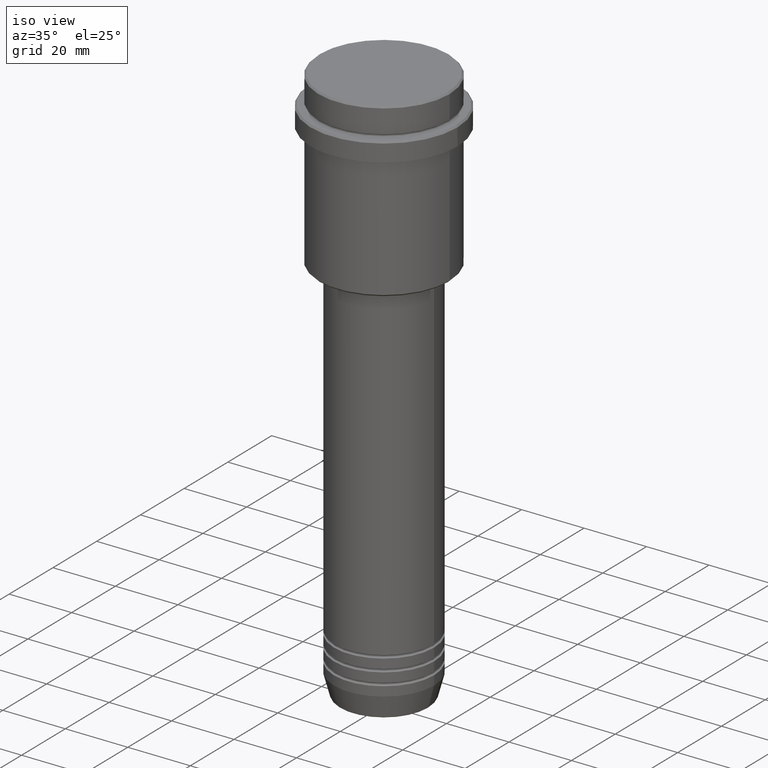
[diagram: clean part render]
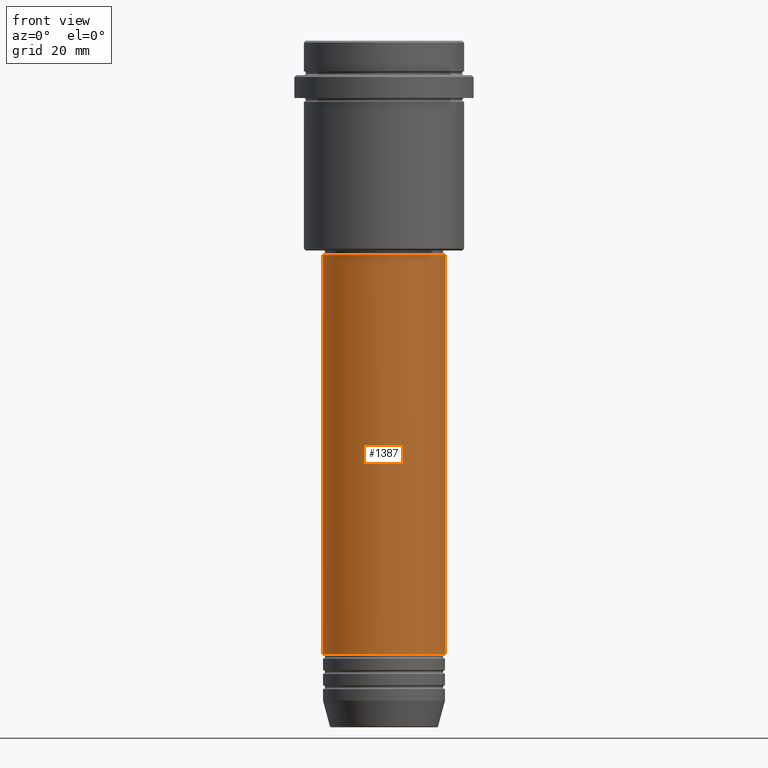
[diagram: tour spotlight — one face highlighted and labeled with its STEP entity id]
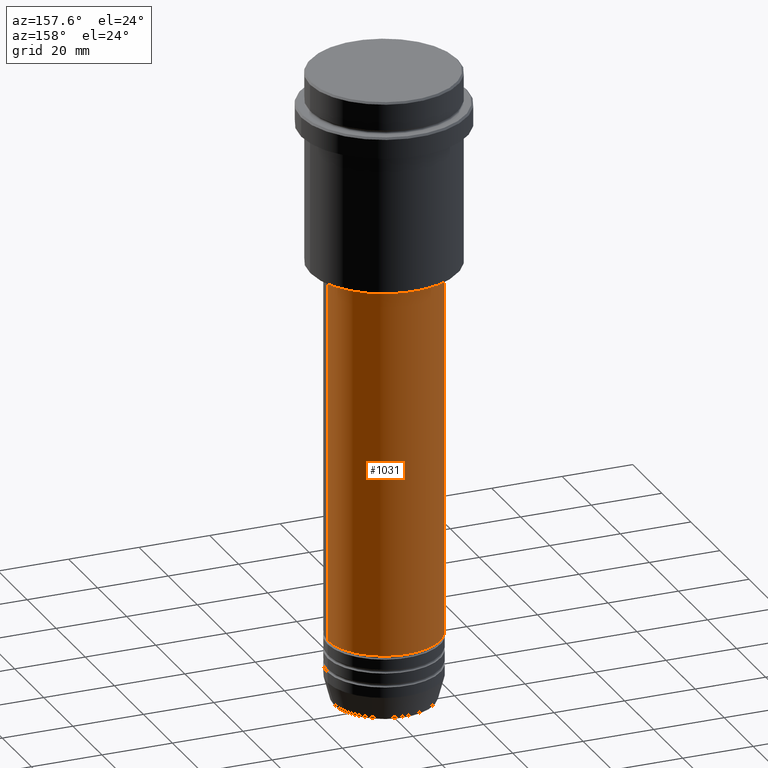
[diagram: tour spotlight — one face highlighted and labeled with its STEP entity id]
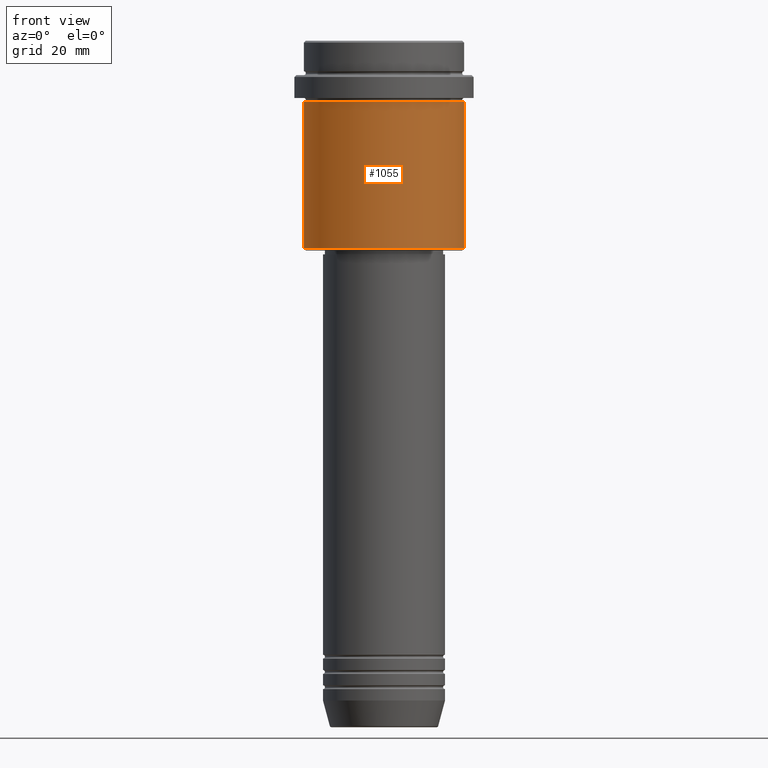
[diagram: tour spotlight — one face highlighted and labeled with its STEP entity id]
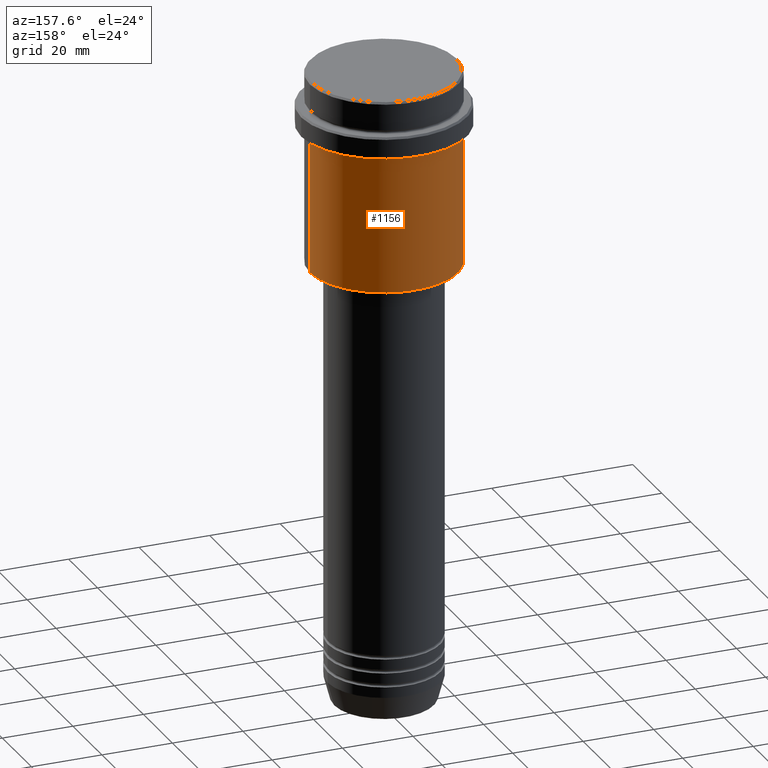
[diagram: tour spotlight — one face highlighted and labeled with its STEP entity id]
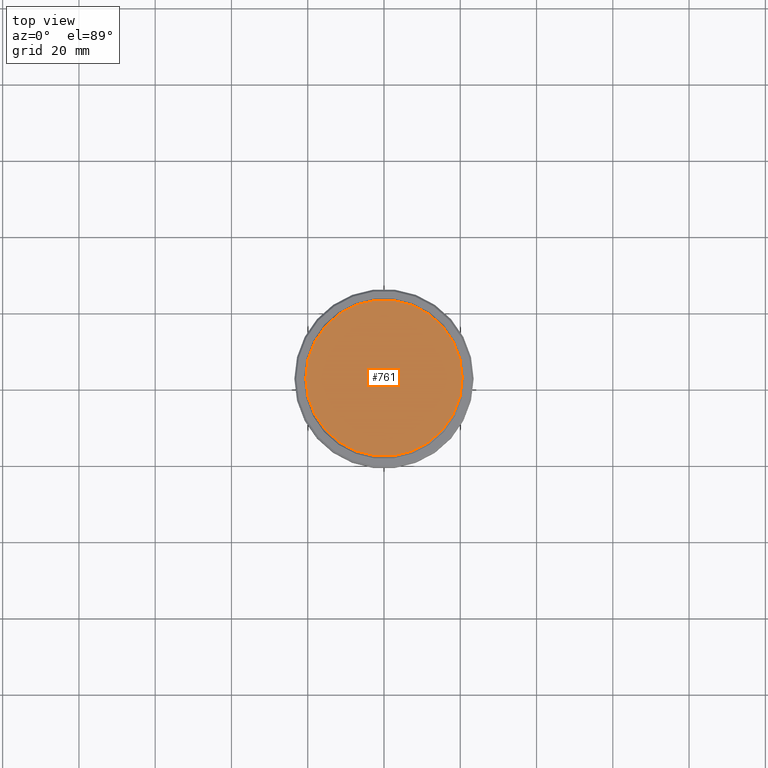
[diagram: tour spotlight — one face highlighted and labeled with its STEP entity id]
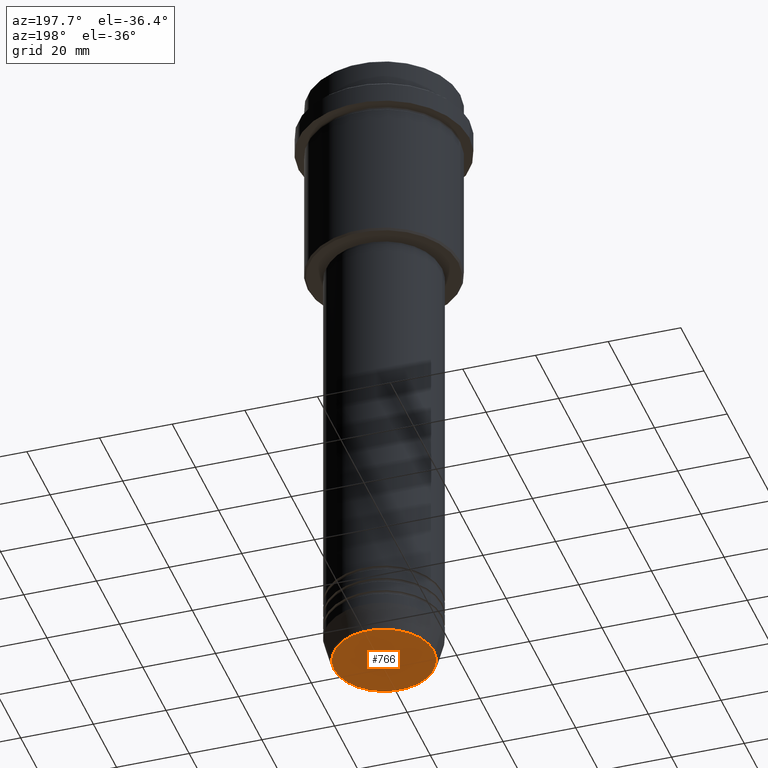
[diagram: tour spotlight — one face highlighted and labeled with its STEP entity id]
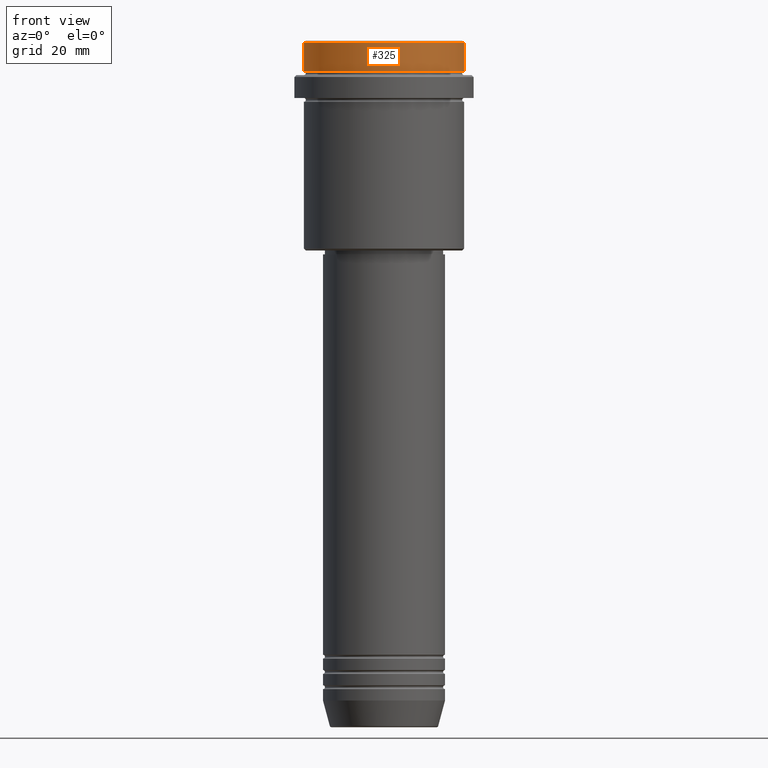
[diagram: tour spotlight — one face highlighted and labeled with its STEP entity id]
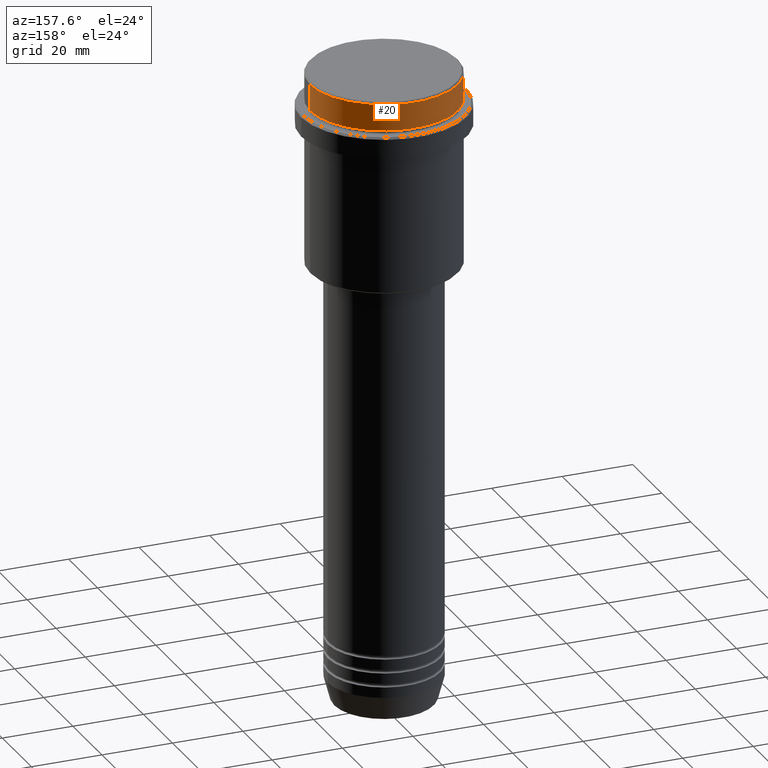
[diagram: tour spotlight — one face highlighted and labeled with its STEP entity id]
A machine part: a face-by-face anatomy tour. The part has 52 B-rep faces; the first image is the clean iso view, then the 8 largest visible faces are spotlighted one at a time (largest first), each with its STEP entity span.

Face 1 — front view, entity #1387. In plain terms, the highlighted cylindrical surface (partial cylindrical patch) has radius 16 mm, axis along (-0, -0, 1).
Definition (entity closure, byte-faithful):
#221 = DIRECTION ( 'NONE',  ( -0.000000000000000000, -0.000000000000000000, 1.000000000000000000 ) ) ;
#254 = LINE ( 'NONE', #1130, #696 ) ;
#318 = ORIENTED_EDGE ( 'NONE', *, *, #471, .F. ) ;
#347 = VERTEX_POINT ( 'NONE', #1361 ) ;
#352 = CARTESIAN_POINT ( 'NONE',  ( -16.00000000000000000, 1.959434878635765131E-15, -160.9999999999998579 ) ) ;
#359 = CARTESIAN_POINT ( 'NONE',  ( 0.000000000000000000, 0.000000000000000000, -160.9999999999998579 ) ) ;
#459 = CARTESIAN_POINT ( 'NONE',  ( 0.000000000000000000, 0.000000000000000000, -55.99999999999999289 ) ) ;
#471 = EDGE_CURVE ( 'NONE', #594, #1333, #1203, .T. ) ;
#498 = CIRCLE ( 'NONE', #649, 16.00000000000000355 ) ;
#518 = EDGE_CURVE ( 'NONE', #347, #878, #254, .T. ) ;
#580 = CARTESIAN_POINT ( 'NONE',  ( -16.00000000000000355, 1.959434878635765526E-15, -55.99999999999999289 ) ) ;
#583 = ORIENTED_EDGE ( 'NONE', *, *, #1022, .T. ) ;
#594 = VERTEX_POINT ( 'NONE', #352 ) ;
#649 = AXIS2_PLACEMENT_3D ( 'NONE', #459, #898, #688 ) ;
#688 = DIRECTION ( 'NONE',  ( 1.000000000000000000, 0.000000000000000000, 0.000000000000000000 ) ) ;
#689 = EDGE_LOOP ( 'NONE', ( #318, #583, #763, #1170 ) ) ;
#696 = VECTOR ( 'NONE', #935, 1000.000000000000000 ) ;
#710 = CARTESIAN_POINT ( 'NONE',  ( 16.00000000000000355, 0.000000000000000000, -55.99999999999999289 ) ) ;
#722 = AXIS2_PLACEMENT_3D ( 'NONE', #1398, #960, #1385 ) ;
#751 = VECTOR ( 'NONE', #221, 1000.000000000000000 ) ;
#763 = ORIENTED_EDGE ( 'NONE', *, *, #518, .T. ) ;
#818 = DIRECTION ( 'NONE',  ( -0.000000000000000000, -0.000000000000000000, 1.000000000000000000 ) ) ;
#871 = FACE_OUTER_BOUND ( 'NONE', #689, .T. ) ;
#878 = VERTEX_POINT ( 'NONE', #710 ) ;
#898 = DIRECTION ( 'NONE',  ( -0.000000000000000000, -0.000000000000000000, 1.000000000000000000 ) ) ;
#935 = DIRECTION ( 'NONE',  ( -0.000000000000000000, -0.000000000000000000, 1.000000000000000000 ) ) ;
#951 = CYLINDRICAL_SURFACE ( 'NONE', #722, 16.00000000000000000 ) ;
#960 = DIRECTION ( 'NONE',  ( -0.000000000000000000, -0.000000000000000000, 1.000000000000000000 ) ) ;
#994 = AXIS2_PLACEMENT_3D ( 'NONE', #359, #818, #1236 ) ;
#1022 = EDGE_CURVE ( 'NONE', #594, #347, #1254, .T. ) ;
#1099 = CARTESIAN_POINT ( 'NONE',  ( -16.00000000000000000, 1.959434878635765131E-15, 0.000000000000000000 ) ) ;
#1130 = CARTESIAN_POINT ( 'NONE',  ( 16.00000000000000000, 0.000000000000000000, 0.000000000000000000 ) ) ;
#1170 = ORIENTED_EDGE ( 'NONE', *, *, #1218, .F. ) ;
#1203 = LINE ( 'NONE', #1099, #751 ) ;
#1218 = EDGE_CURVE ( 'NONE', #1333, #878, #498, .T. ) ;
#1236 = DIRECTION ( 'NONE',  ( 1.000000000000000000, 0.000000000000000000, 0.000000000000000000 ) ) ;
#1254 = CIRCLE ( 'NONE', #994, 16.00000000000000000 ) ;
#1333 = VERTEX_POINT ( 'NONE', #580 ) ;
#1361 = CARTESIAN_POINT ( 'NONE',  ( 16.00000000000000000, 0.000000000000000000, -160.9999999999998579 ) ) ;
#1385 = DIRECTION ( 'NONE',  ( 1.000000000000000000, 0.000000000000000000, 0.000000000000000000 ) ) ;
#1387 = ADVANCED_FACE ( 'NONE', ( #871 ), #951, .T. ) ;
#1398 = CARTESIAN_POINT ( 'NONE',  ( 0.000000000000000000, 0.000000000000000000, 0.000000000000000000 ) ) ;

Face 2 — auxiliary view, entity #1031. In plain terms, the highlighted cylindrical surface (partial cylindrical patch) has radius 16 mm, axis along (-0, -0, 1).
Definition (entity closure, byte-faithful):
#47 = ORIENTED_EDGE ( 'NONE', *, *, #471, .T. ) ;
#55 = DIRECTION ( 'NONE',  ( 1.000000000000000000, 0.000000000000000000, 0.000000000000000000 ) ) ;
#149 = DIRECTION ( 'NONE',  ( -0.000000000000000000, -0.000000000000000000, 1.000000000000000000 ) ) ;
#155 = EDGE_CURVE ( 'NONE', #347, #594, #343, .T. ) ;
#221 = DIRECTION ( 'NONE',  ( -0.000000000000000000, -0.000000000000000000, 1.000000000000000000 ) ) ;
#254 = LINE ( 'NONE', #1130, #696 ) ;
#277 = DIRECTION ( 'NONE',  ( 1.000000000000000000, 0.000000000000000000, 0.000000000000000000 ) ) ;
#343 = CIRCLE ( 'NONE', #494, 16.00000000000000000 ) ;
#347 = VERTEX_POINT ( 'NONE', #1361 ) ;
#352 = CARTESIAN_POINT ( 'NONE',  ( -16.00000000000000000, 1.959434878635765131E-15, -160.9999999999998579 ) ) ;
#384 = AXIS2_PLACEMENT_3D ( 'NONE', #675, #493, #277 ) ;
#471 = EDGE_CURVE ( 'NONE', #594, #1333, #1203, .T. ) ;
#485 = DIRECTION ( 'NONE',  ( -0.000000000000000000, -0.000000000000000000, 1.000000000000000000 ) ) ;
#493 = DIRECTION ( 'NONE',  ( -0.000000000000000000, -0.000000000000000000, 1.000000000000000000 ) ) ;
#494 = AXIS2_PLACEMENT_3D ( 'NONE', #701, #485, #598 ) ;
#503 = EDGE_CURVE ( 'NONE', #878, #1333, #538, .T. ) ;
#518 = EDGE_CURVE ( 'NONE', #347, #878, #254, .T. ) ;
#535 = ORIENTED_EDGE ( 'NONE', *, *, #155, .T. ) ;
#538 = CIRCLE ( 'NONE', #950, 16.00000000000000355 ) ;
#580 = CARTESIAN_POINT ( 'NONE',  ( -16.00000000000000355, 1.959434878635765526E-15, -55.99999999999999289 ) ) ;
#594 = VERTEX_POINT ( 'NONE', #352 ) ;
#598 = DIRECTION ( 'NONE',  ( 1.000000000000000000, 0.000000000000000000, 0.000000000000000000 ) ) ;
#675 = CARTESIAN_POINT ( 'NONE',  ( 0.000000000000000000, 0.000000000000000000, 0.000000000000000000 ) ) ;
#682 = CYLINDRICAL_SURFACE ( 'NONE', #384, 16.00000000000000000 ) ;
#696 = VECTOR ( 'NONE', #935, 1000.000000000000000 ) ;
#701 = CARTESIAN_POINT ( 'NONE',  ( 0.000000000000000000, 0.000000000000000000, -160.9999999999998579 ) ) ;
#710 = CARTESIAN_POINT ( 'NONE',  ( 16.00000000000000355, 0.000000000000000000, -55.99999999999999289 ) ) ;
#751 = VECTOR ( 'NONE', #221, 1000.000000000000000 ) ;
#803 = CARTESIAN_POINT ( 'NONE',  ( 0.000000000000000000, 0.000000000000000000, -55.99999999999999289 ) ) ;
#878 = VERTEX_POINT ( 'NONE', #710 ) ;
#935 = DIRECTION ( 'NONE',  ( -0.000000000000000000, -0.000000000000000000, 1.000000000000000000 ) ) ;
#941 = ORIENTED_EDGE ( 'NONE', *, *, #503, .F. ) ;
#950 = AXIS2_PLACEMENT_3D ( 'NONE', #803, #149, #55 ) ;
#1031 = ADVANCED_FACE ( 'NONE', ( #1117 ), #682, .T. ) ;
#1099 = CARTESIAN_POINT ( 'NONE',  ( -16.00000000000000000, 1.959434878635765131E-15, 0.000000000000000000 ) ) ;
#1117 = FACE_OUTER_BOUND ( 'NONE', #1132, .T. ) ;
#1130 = CARTESIAN_POINT ( 'NONE',  ( 16.00000000000000000, 0.000000000000000000, 0.000000000000000000 ) ) ;
#1132 = EDGE_LOOP ( 'NONE', ( #535, #47, #941, #1311 ) ) ;
#1203 = LINE ( 'NONE', #1099, #751 ) ;
#1311 = ORIENTED_EDGE ( 'NONE', *, *, #518, .F. ) ;
#1333 = VERTEX_POINT ( 'NONE', #580 ) ;
#1361 = CARTESIAN_POINT ( 'NONE',  ( 16.00000000000000000, 0.000000000000000000, -160.9999999999998579 ) ) ;

Face 3 — front view, entity #1055. In plain terms, the highlighted cylindrical surface (partial cylindrical patch) has radius 21 mm, axis along (-0, -0, 1).
Definition (entity closure, byte-faithful):
#32 = CARTESIAN_POINT ( 'NONE',  ( 21.00000000000000000, 0.000000000000000000, -54.49999999999999289 ) ) ;
#100 = EDGE_CURVE ( 'NONE', #740, #1116, #172, .T. ) ;
#132 = DIRECTION ( 'NONE',  ( -0.000000000000000000, -0.000000000000000000, 1.000000000000000000 ) ) ;
#171 = AXIS2_PLACEMENT_3D ( 'NONE', #444, #1304, #764 ) ;
#172 = CIRCLE ( 'NONE', #788, 21.00000000000000000 ) ;
#176 = ORIENTED_EDGE ( 'NONE', *, *, #792, .T. ) ;
#206 = ORIENTED_EDGE ( 'NONE', *, *, #100, .F. ) ;
#240 = CIRCLE ( 'NONE', #171, 21.00000000000000000 ) ;
#285 = CARTESIAN_POINT ( 'NONE',  ( -21.00000000000000000, 2.571758278209441661E-15, -16.00000000000000355 ) ) ;
#303 = DIRECTION ( 'NONE',  ( -0.000000000000000000, -0.000000000000000000, 1.000000000000000000 ) ) ;
#307 = EDGE_LOOP ( 'NONE', ( #1175, #1269, #176, #206 ) ) ;
#313 = FACE_OUTER_BOUND ( 'NONE', #307, .T. ) ;
#394 = DIRECTION ( 'NONE',  ( -0.000000000000000000, -0.000000000000000000, 1.000000000000000000 ) ) ;
#444 = CARTESIAN_POINT ( 'NONE',  ( 0.000000000000000000, 0.000000000000000000, -54.49999999999999289 ) ) ;
#466 = DIRECTION ( 'NONE',  ( 1.000000000000000000, 0.000000000000000000, 0.000000000000000000 ) ) ;
#492 = LINE ( 'NONE', #1340, #1097 ) ;
#507 = CARTESIAN_POINT ( 'NONE',  ( 0.000000000000000000, 0.000000000000000000, 0.000000000000000000 ) ) ;
#520 = DIRECTION ( 'NONE',  ( 1.000000000000000000, 0.000000000000000000, 0.000000000000000000 ) ) ;
#740 = VERTEX_POINT ( 'NONE', #285 ) ;
#754 = EDGE_CURVE ( 'NONE', #914, #740, #1112, .T. ) ;
#764 = DIRECTION ( 'NONE',  ( -1.000000000000000000, 0.000000000000000000, 0.000000000000000000 ) ) ;
#774 = DIRECTION ( 'NONE',  ( -0.000000000000000000, -0.000000000000000000, 1.000000000000000000 ) ) ;
#788 = AXIS2_PLACEMENT_3D ( 'NONE', #1006, #132, #466 ) ;
#792 = EDGE_CURVE ( 'NONE', #1025, #1116, #492, .T. ) ;
#817 = VECTOR ( 'NONE', #774, 1000.000000000000000 ) ;
#914 = VERTEX_POINT ( 'NONE', #1266 ) ;
#1006 = CARTESIAN_POINT ( 'NONE',  ( 0.000000000000000000, 0.000000000000000000, -16.00000000000000355 ) ) ;
#1025 = VERTEX_POINT ( 'NONE', #32 ) ;
#1055 = ADVANCED_FACE ( 'NONE', ( #313 ), #1265, .T. ) ;
#1096 = EDGE_CURVE ( 'NONE', #914, #1025, #240, .T. ) ;
#1097 = VECTOR ( 'NONE', #394, 1000.000000000000000 ) ;
#1112 = LINE ( 'NONE', #1341, #817 ) ;
#1116 = VERTEX_POINT ( 'NONE', #1197 ) ;
#1166 = AXIS2_PLACEMENT_3D ( 'NONE', #507, #303, #520 ) ;
#1175 = ORIENTED_EDGE ( 'NONE', *, *, #754, .F. ) ;
#1197 = CARTESIAN_POINT ( 'NONE',  ( 21.00000000000000000, 0.000000000000000000, -16.00000000000000355 ) ) ;
#1265 = CYLINDRICAL_SURFACE ( 'NONE', #1166, 21.00000000000000000 ) ;
#1266 = CARTESIAN_POINT ( 'NONE',  ( -21.00000000000000000, 2.571758278209441661E-15, -54.49999999999999289 ) ) ;
#1269 = ORIENTED_EDGE ( 'NONE', *, *, #1096, .T. ) ;
#1304 = DIRECTION ( 'NONE',  ( -0.000000000000000000, -0.000000000000000000, 1.000000000000000000 ) ) ;
#1340 = CARTESIAN_POINT ( 'NONE',  ( 21.00000000000000000, 0.000000000000000000, 0.000000000000000000 ) ) ;
#1341 = CARTESIAN_POINT ( 'NONE',  ( -21.00000000000000000, 2.571758278209441661E-15, 0.000000000000000000 ) ) ;

Face 4 — auxiliary view, entity #1156. In plain terms, the highlighted cylindrical surface (partial cylindrical patch) has radius 21 mm, axis along (-0, -0, 1).
Definition (entity closure, byte-faithful):
#32 = CARTESIAN_POINT ( 'NONE',  ( 21.00000000000000000, 0.000000000000000000, -54.49999999999999289 ) ) ;
#34 = ORIENTED_EDGE ( 'NONE', *, *, #792, .F. ) ;
#37 = ORIENTED_EDGE ( 'NONE', *, *, #429, .T. ) ;
#101 = EDGE_LOOP ( 'NONE', ( #37, #263, #1075, #34 ) ) ;
#251 = DIRECTION ( 'NONE',  ( 1.000000000000000000, 0.000000000000000000, 0.000000000000000000 ) ) ;
#263 = ORIENTED_EDGE ( 'NONE', *, *, #754, .T. ) ;
#285 = CARTESIAN_POINT ( 'NONE',  ( -21.00000000000000000, 2.571758278209441661E-15, -16.00000000000000355 ) ) ;
#299 = AXIS2_PLACEMENT_3D ( 'NONE', #419, #799, #251 ) ;
#323 = DIRECTION ( 'NONE',  ( 1.000000000000000000, 0.000000000000000000, 0.000000000000000000 ) ) ;
#365 = CARTESIAN_POINT ( 'NONE',  ( 0.000000000000000000, 0.000000000000000000, -54.49999999999999289 ) ) ;
#394 = DIRECTION ( 'NONE',  ( -0.000000000000000000, -0.000000000000000000, 1.000000000000000000 ) ) ;
#419 = CARTESIAN_POINT ( 'NONE',  ( 0.000000000000000000, 0.000000000000000000, 0.000000000000000000 ) ) ;
#429 = EDGE_CURVE ( 'NONE', #1025, #914, #1207, .T. ) ;
#438 = DIRECTION ( 'NONE',  ( -0.000000000000000000, -0.000000000000000000, 1.000000000000000000 ) ) ;
#492 = LINE ( 'NONE', #1340, #1097 ) ;
#545 = DIRECTION ( 'NONE',  ( -1.000000000000000000, 0.000000000000000000, 0.000000000000000000 ) ) ;
#564 = CIRCLE ( 'NONE', #739, 21.00000000000000000 ) ;
#739 = AXIS2_PLACEMENT_3D ( 'NONE', #856, #438, #323 ) ;
#740 = VERTEX_POINT ( 'NONE', #285 ) ;
#754 = EDGE_CURVE ( 'NONE', #914, #740, #1112, .T. ) ;
#774 = DIRECTION ( 'NONE',  ( -0.000000000000000000, -0.000000000000000000, 1.000000000000000000 ) ) ;
#792 = EDGE_CURVE ( 'NONE', #1025, #1116, #492, .T. ) ;
#799 = DIRECTION ( 'NONE',  ( -0.000000000000000000, -0.000000000000000000, 1.000000000000000000 ) ) ;
#817 = VECTOR ( 'NONE', #774, 1000.000000000000000 ) ;
#856 = CARTESIAN_POINT ( 'NONE',  ( 0.000000000000000000, 0.000000000000000000, -16.00000000000000355 ) ) ;
#914 = VERTEX_POINT ( 'NONE', #1266 ) ;
#1005 = DIRECTION ( 'NONE',  ( -0.000000000000000000, -0.000000000000000000, 1.000000000000000000 ) ) ;
#1025 = VERTEX_POINT ( 'NONE', #32 ) ;
#1075 = ORIENTED_EDGE ( 'NONE', *, *, #1409, .F. ) ;
#1097 = VECTOR ( 'NONE', #394, 1000.000000000000000 ) ;
#1112 = LINE ( 'NONE', #1341, #817 ) ;
#1116 = VERTEX_POINT ( 'NONE', #1197 ) ;
#1156 = ADVANCED_FACE ( 'NONE', ( #1389 ), #1386, .T. ) ;
#1197 = CARTESIAN_POINT ( 'NONE',  ( 21.00000000000000000, 0.000000000000000000, -16.00000000000000355 ) ) ;
#1207 = CIRCLE ( 'NONE', #1306, 21.00000000000000000 ) ;
#1266 = CARTESIAN_POINT ( 'NONE',  ( -21.00000000000000000, 2.571758278209441661E-15, -54.49999999999999289 ) ) ;
#1306 = AXIS2_PLACEMENT_3D ( 'NONE', #365, #1005, #545 ) ;
#1340 = CARTESIAN_POINT ( 'NONE',  ( 21.00000000000000000, 0.000000000000000000, 0.000000000000000000 ) ) ;
#1341 = CARTESIAN_POINT ( 'NONE',  ( -21.00000000000000000, 2.571758278209441661E-15, 0.000000000000000000 ) ) ;
#1386 = CYLINDRICAL_SURFACE ( 'NONE', #299, 21.00000000000000000 ) ;
#1389 = FACE_OUTER_BOUND ( 'NONE', #101, .T. ) ;
#1409 = EDGE_CURVE ( 'NONE', #1116, #740, #564, .T. ) ;

Face 5 — top view, entity #761. In plain terms, the highlighted planar face has unit normal (0, -0, 1).
Definition (entity closure, byte-faithful):
#46 = CARTESIAN_POINT ( 'NONE',  ( 0.000000000000000000, 0.000000000000000000, 0.000000000000000000 ) ) ;
#128 = ORIENTED_EDGE ( 'NONE', *, *, #1040, .T. ) ;
#211 = DIRECTION ( 'NONE',  ( 1.000000000000000000, 0.000000000000000000, 0.000000000000000000 ) ) ;
#258 = VERTEX_POINT ( 'NONE', #1152 ) ;
#289 = DIRECTION ( 'NONE',  ( 0.000000000000000000, -0.000000000000000000, 1.000000000000000000 ) ) ;
#411 = DIRECTION ( 'NONE',  ( 1.000000000000000000, 0.000000000000000000, 0.000000000000000000 ) ) ;
#477 = VERTEX_POINT ( 'NONE', #548 ) ;
#548 = CARTESIAN_POINT ( 'NONE',  ( 20.49999999999998934, 2.541142108230757480E-15, 0.000000000000000000 ) ) ;
#550 = EDGE_LOOP ( 'NONE', ( #128, #681 ) ) ;
#589 = DIRECTION ( 'NONE',  ( -0.000000000000000000, -0.000000000000000000, 1.000000000000000000 ) ) ;
#681 = ORIENTED_EDGE ( 'NONE', *, *, #721, .T. ) ;
#721 = EDGE_CURVE ( 'NONE', #477, #258, #859, .T. ) ;
#748 = CARTESIAN_POINT ( 'NONE',  ( 0.000000000000000000, 0.000000000000000000, 0.000000000000000000 ) ) ;
#761 = ADVANCED_FACE ( 'NONE', ( #866 ), #858, .T. ) ;
#791 = CARTESIAN_POINT ( 'NONE',  ( 0.000000000000000000, 0.000000000000000000, 0.000000000000000000 ) ) ;
#858 = PLANE ( 'NONE',  #929 ) ;
#859 = CIRCLE ( 'NONE', #1253, 20.49999999999998934 ) ;
#866 = FACE_OUTER_BOUND ( 'NONE', #550, .T. ) ;
#881 = CIRCLE ( 'NONE', #907, 20.49999999999998934 ) ;
#907 = AXIS2_PLACEMENT_3D ( 'NONE', #791, #589, #1154 ) ;
#929 = AXIS2_PLACEMENT_3D ( 'NONE', #46, #289, #411 ) ;
#1040 = EDGE_CURVE ( 'NONE', #258, #477, #881, .T. ) ;
#1152 = CARTESIAN_POINT ( 'NONE',  ( -20.49999999999998934, 0.000000000000000000, 0.000000000000000000 ) ) ;
#1154 = DIRECTION ( 'NONE',  ( 1.000000000000000000, 0.000000000000000000, 0.000000000000000000 ) ) ;
#1182 = DIRECTION ( 'NONE',  ( -0.000000000000000000, -0.000000000000000000, 1.000000000000000000 ) ) ;
#1253 = AXIS2_PLACEMENT_3D ( 'NONE', #748, #1182, #211 ) ;

Face 6 — auxiliary view, entity #766. In plain terms, the highlighted planar face has unit normal (0, -0, 1).
Definition (entity closure, byte-faithful):
#104 = EDGE_CURVE ( 'NONE', #928, #1299, #1400, .T. ) ;
#122 = AXIS2_PLACEMENT_3D ( 'NONE', #796, #684, #1219 ) ;
#175 = DIRECTION ( 'NONE',  ( 0.000000000000000000, -0.000000000000000000, 1.000000000000000000 ) ) ;
#195 = AXIS2_PLACEMENT_3D ( 'NONE', #1041, #175, #713 ) ;
#403 = CARTESIAN_POINT ( 'NONE',  ( 0.000000000000000000, 0.000000000000000000, -180.0000000000000000 ) ) ;
#464 = CARTESIAN_POINT ( 'NONE',  ( 13.74069215899265828, 0.000000000000000000, -180.0000000000000000 ) ) ;
#578 = ORIENTED_EDGE ( 'NONE', *, *, #640, .T. ) ;
#588 = AXIS2_PLACEMENT_3D ( 'NONE', #403, #846, #922 ) ;
#640 = EDGE_CURVE ( 'NONE', #1299, #928, #1395, .T. ) ;
#673 = EDGE_LOOP ( 'NONE', ( #578, #1384 ) ) ;
#684 = DIRECTION ( 'NONE',  ( 0.000000000000000000, 0.000000000000000000, -1.000000000000000000 ) ) ;
#713 = DIRECTION ( 'NONE',  ( 1.000000000000000000, 0.000000000000000000, 0.000000000000000000 ) ) ;
#766 = ADVANCED_FACE ( 'NONE', ( #1129 ), #1234, .F. ) ;
#773 = CARTESIAN_POINT ( 'NONE',  ( -13.74069215899265828, 1.712322416342415986E-15, -180.0000000000000000 ) ) ;
#796 = CARTESIAN_POINT ( 'NONE',  ( 0.000000000000000000, 0.000000000000000000, -180.0000000000000000 ) ) ;
#846 = DIRECTION ( 'NONE',  ( 0.000000000000000000, 0.000000000000000000, -1.000000000000000000 ) ) ;
#922 = DIRECTION ( 'NONE',  ( 1.000000000000000000, 0.000000000000000000, 0.000000000000000000 ) ) ;
#928 = VERTEX_POINT ( 'NONE', #773 ) ;
#1041 = CARTESIAN_POINT ( 'NONE',  ( 0.000000000000000000, 0.000000000000000000, -180.0000000000000000 ) ) ;
#1129 = FACE_OUTER_BOUND ( 'NONE', #673, .T. ) ;
#1219 = DIRECTION ( 'NONE',  ( 1.000000000000000000, 0.000000000000000000, 0.000000000000000000 ) ) ;
#1234 = PLANE ( 'NONE',  #195 ) ;
#1299 = VERTEX_POINT ( 'NONE', #464 ) ;
#1384 = ORIENTED_EDGE ( 'NONE', *, *, #104, .T. ) ;
#1395 = CIRCLE ( 'NONE', #588, 13.74069215899265828 ) ;
#1400 = CIRCLE ( 'NONE', #122, 13.74069215899265828 ) ;

Face 7 — front view, entity #325. In plain terms, the highlighted cylindrical surface (partial cylindrical patch) has radius 21 mm, axis along (-0, -0, 1).
Definition (entity closure, byte-faithful):
#51 = CARTESIAN_POINT ( 'NONE',  ( 0.000000000000000000, 0.000000000000000000, 0.000000000000000000 ) ) ;
#63 = CARTESIAN_POINT ( 'NONE',  ( 0.000000000000000000, 0.000000000000000000, -7.999999999999998224 ) ) ;
#69 = FACE_OUTER_BOUND ( 'NONE', #527, .T. ) ;
#127 = LINE ( 'NONE', #570, #1348 ) ;
#186 = CARTESIAN_POINT ( 'NONE',  ( 0.000000000000000000, 0.000000000000000000, -0.5000000000000108802 ) ) ;
#193 = AXIS2_PLACEMENT_3D ( 'NONE', #186, #823, #850 ) ;
#194 = CYLINDRICAL_SURFACE ( 'NONE', #1416, 21.00000000000000000 ) ;
#293 = EDGE_CURVE ( 'NONE', #940, #572, #949, .T. ) ;
#325 = ADVANCED_FACE ( 'NONE', ( #69 ), #194, .T. ) ;
#372 = VERTEX_POINT ( 'NONE', #982 ) ;
#395 = DIRECTION ( 'NONE',  ( -0.000000000000000000, -0.000000000000000000, 1.000000000000000000 ) ) ;
#458 = CARTESIAN_POINT ( 'NONE',  ( -21.00000000000000000, 2.571758278209441661E-15, -0.5000000000000108802 ) ) ;
#504 = LINE ( 'NONE', #1174, #1372 ) ;
#527 = EDGE_LOOP ( 'NONE', ( #1011, #546, #983, #1150 ) ) ;
#542 = VERTEX_POINT ( 'NONE', #1044 ) ;
#546 = ORIENTED_EDGE ( 'NONE', *, *, #809, .T. ) ;
#570 = CARTESIAN_POINT ( 'NONE',  ( 21.00000000000000000, 0.000000000000000000, 0.000000000000000000 ) ) ;
#572 = VERTEX_POINT ( 'NONE', #458 ) ;
#603 = EDGE_CURVE ( 'NONE', #542, #940, #127, .T. ) ;
#608 = AXIS2_PLACEMENT_3D ( 'NONE', #63, #1262, #1157 ) ;
#802 = EDGE_CURVE ( 'NONE', #372, #572, #504, .T. ) ;
#809 = EDGE_CURVE ( 'NONE', #372, #542, #1035, .T. ) ;
#823 = DIRECTION ( 'NONE',  ( 0.000000000000000000, 0.000000000000000000, -1.000000000000000000 ) ) ;
#830 = DIRECTION ( 'NONE',  ( 1.000000000000000000, 0.000000000000000000, 0.000000000000000000 ) ) ;
#850 = DIRECTION ( 'NONE',  ( 1.000000000000000000, 0.000000000000000000, 0.000000000000000000 ) ) ;
#940 = VERTEX_POINT ( 'NONE', #1288 ) ;
#949 = CIRCLE ( 'NONE', #193, 21.00000000000000000 ) ;
#982 = CARTESIAN_POINT ( 'NONE',  ( -21.00000000000000000, 2.571758278209441661E-15, -7.999999999999998224 ) ) ;
#983 = ORIENTED_EDGE ( 'NONE', *, *, #603, .T. ) ;
#1003 = DIRECTION ( 'NONE',  ( -0.000000000000000000, -0.000000000000000000, 1.000000000000000000 ) ) ;
#1011 = ORIENTED_EDGE ( 'NONE', *, *, #802, .F. ) ;
#1035 = CIRCLE ( 'NONE', #608, 21.00000000000000000 ) ;
#1044 = CARTESIAN_POINT ( 'NONE',  ( 21.00000000000000000, 0.000000000000000000, -7.999999999999998224 ) ) ;
#1150 = ORIENTED_EDGE ( 'NONE', *, *, #293, .T. ) ;
#1157 = DIRECTION ( 'NONE',  ( 1.000000000000000000, 0.000000000000000000, 0.000000000000000000 ) ) ;
#1174 = CARTESIAN_POINT ( 'NONE',  ( -21.00000000000000000, 2.571758278209441661E-15, 0.000000000000000000 ) ) ;
#1262 = DIRECTION ( 'NONE',  ( -0.000000000000000000, -0.000000000000000000, 1.000000000000000000 ) ) ;
#1288 = CARTESIAN_POINT ( 'NONE',  ( 21.00000000000000000, 0.000000000000000000, -0.5000000000000108802 ) ) ;
#1290 = DIRECTION ( 'NONE',  ( -0.000000000000000000, -0.000000000000000000, 1.000000000000000000 ) ) ;
#1348 = VECTOR ( 'NONE', #1003, 1000.000000000000000 ) ;
#1372 = VECTOR ( 'NONE', #1290, 1000.000000000000000 ) ;
#1416 = AXIS2_PLACEMENT_3D ( 'NONE', #51, #395, #830 ) ;

Face 8 — auxiliary view, entity #20. In plain terms, the highlighted cylindrical surface (partial cylindrical patch) has radius 21 mm, axis along (-0, -0, 1).
Definition (entity closure, byte-faithful):
#20 = ADVANCED_FACE ( 'NONE', ( #1086 ), #99, .T. ) ;
#83 = DIRECTION ( 'NONE',  ( -0.000000000000000000, -0.000000000000000000, 1.000000000000000000 ) ) ;
#99 = CYLINDRICAL_SURFACE ( 'NONE', #995, 21.00000000000000000 ) ;
#127 = LINE ( 'NONE', #570, #1348 ) ;
#250 = ORIENTED_EDGE ( 'NONE', *, *, #603, .F. ) ;
#372 = VERTEX_POINT ( 'NONE', #982 ) ;
#383 = CIRCLE ( 'NONE', #559, 21.00000000000000000 ) ;
#458 = CARTESIAN_POINT ( 'NONE',  ( -21.00000000000000000, 2.571758278209441661E-15, -0.5000000000000108802 ) ) ;
#483 = ORIENTED_EDGE ( 'NONE', *, *, #553, .T. ) ;
#504 = LINE ( 'NONE', #1174, #1372 ) ;
#542 = VERTEX_POINT ( 'NONE', #1044 ) ;
#553 = EDGE_CURVE ( 'NONE', #542, #372, #383, .T. ) ;
#559 = AXIS2_PLACEMENT_3D ( 'NONE', #1383, #83, #863 ) ;
#570 = CARTESIAN_POINT ( 'NONE',  ( 21.00000000000000000, 0.000000000000000000, 0.000000000000000000 ) ) ;
#572 = VERTEX_POINT ( 'NONE', #458 ) ;
#600 = ORIENTED_EDGE ( 'NONE', *, *, #802, .T. ) ;
#603 = EDGE_CURVE ( 'NONE', #542, #940, #127, .T. ) ;
#641 = CARTESIAN_POINT ( 'NONE',  ( 0.000000000000000000, 0.000000000000000000, 0.000000000000000000 ) ) ;
#663 = DIRECTION ( 'NONE',  ( 1.000000000000000000, 0.000000000000000000, 0.000000000000000000 ) ) ;
#734 = EDGE_CURVE ( 'NONE', #572, #940, #880, .T. ) ;
#802 = EDGE_CURVE ( 'NONE', #372, #572, #504, .T. ) ;
#805 = EDGE_LOOP ( 'NONE', ( #483, #600, #987, #250 ) ) ;
#863 = DIRECTION ( 'NONE',  ( 1.000000000000000000, 0.000000000000000000, 0.000000000000000000 ) ) ;
#880 = CIRCLE ( 'NONE', #1208, 21.00000000000000000 ) ;
#940 = VERTEX_POINT ( 'NONE', #1288 ) ;
#982 = CARTESIAN_POINT ( 'NONE',  ( -21.00000000000000000, 2.571758278209441661E-15, -7.999999999999998224 ) ) ;
#987 = ORIENTED_EDGE ( 'NONE', *, *, #734, .T. ) ;
#995 = AXIS2_PLACEMENT_3D ( 'NONE', #641, #1169, #663 ) ;
#1003 = DIRECTION ( 'NONE',  ( -0.000000000000000000, -0.000000000000000000, 1.000000000000000000 ) ) ;
#1044 = CARTESIAN_POINT ( 'NONE',  ( 21.00000000000000000, 0.000000000000000000, -7.999999999999998224 ) ) ;
#1086 = FACE_OUTER_BOUND ( 'NONE', #805, .T. ) ;
#1169 = DIRECTION ( 'NONE',  ( -0.000000000000000000, -0.000000000000000000, 1.000000000000000000 ) ) ;
#1174 = CARTESIAN_POINT ( 'NONE',  ( -21.00000000000000000, 2.571758278209441661E-15, 0.000000000000000000 ) ) ;
#1208 = AXIS2_PLACEMENT_3D ( 'NONE', #1381, #1268, #1297 ) ;
#1268 = DIRECTION ( 'NONE',  ( 0.000000000000000000, 0.000000000000000000, -1.000000000000000000 ) ) ;
#1288 = CARTESIAN_POINT ( 'NONE',  ( 21.00000000000000000, 0.000000000000000000, -0.5000000000000108802 ) ) ;
#1290 = DIRECTION ( 'NONE',  ( -0.000000000000000000, -0.000000000000000000, 1.000000000000000000 ) ) ;
#1297 = DIRECTION ( 'NONE',  ( 1.000000000000000000, 0.000000000000000000, 0.000000000000000000 ) ) ;
#1348 = VECTOR ( 'NONE', #1003, 1000.000000000000000 ) ;
#1372 = VECTOR ( 'NONE', #1290, 1000.000000000000000 ) ;
#1381 = CARTESIAN_POINT ( 'NONE',  ( 0.000000000000000000, 0.000000000000000000, -0.5000000000000108802 ) ) ;
#1383 = CARTESIAN_POINT ( 'NONE',  ( 0.000000000000000000, 0.000000000000000000, -7.999999999999998224 ) ) ;